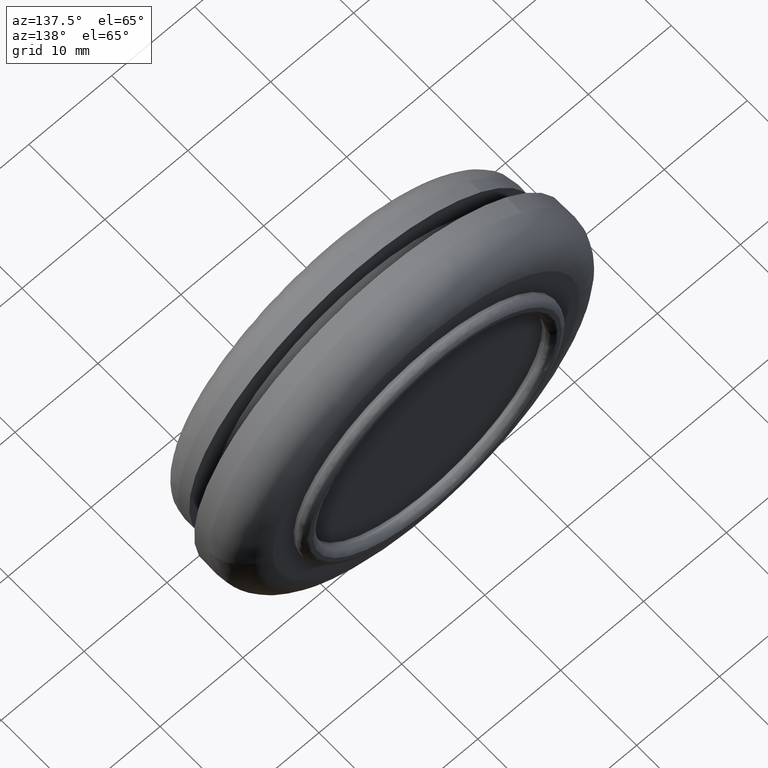
[diagram: clean part render]
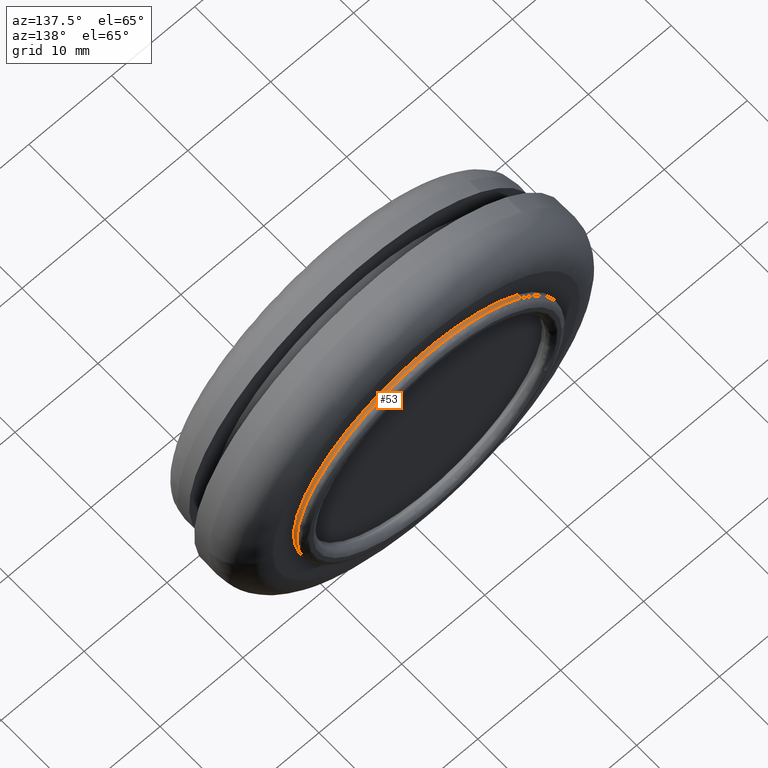
[diagram: same view with one face highlighted and labeled with its STEP entity id]
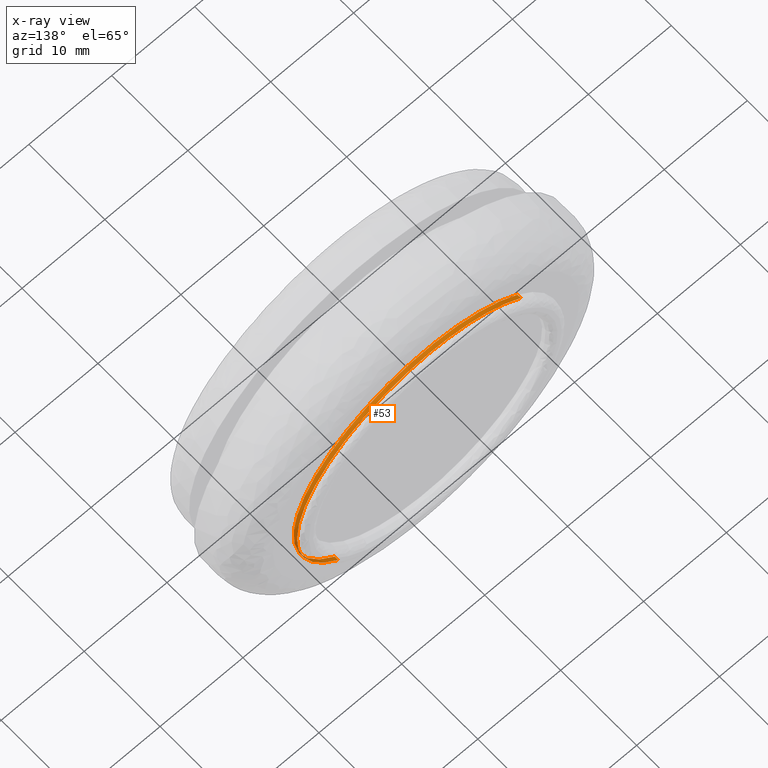
[diagram: x-ray of the same camera — body ghosted, the highlighted face saturated]
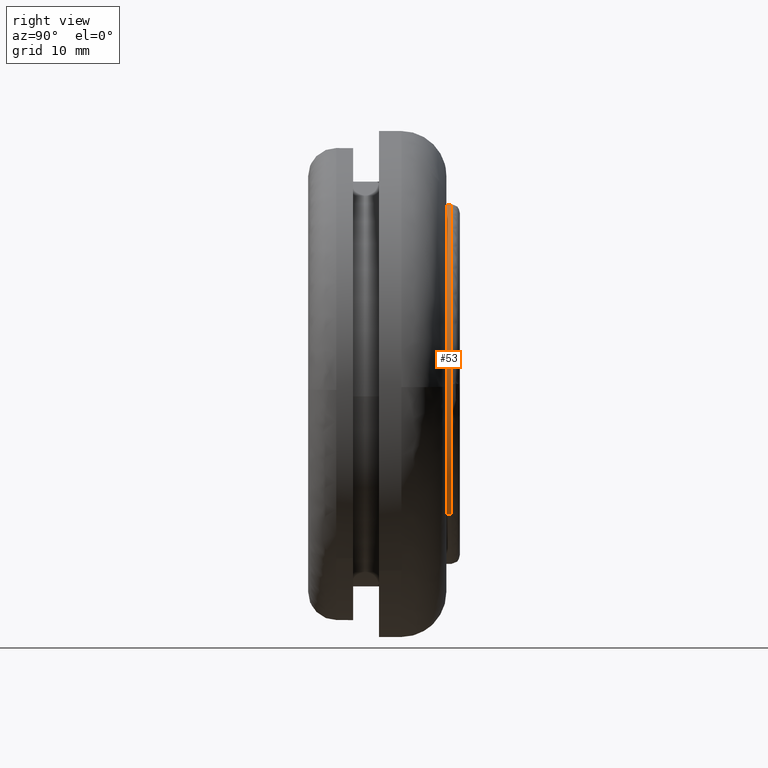
[diagram: same view with one face highlighted and labeled with its STEP entity id]
A machine part, auxiliary view. The second image highlights one B-rep face of the part: STEP entity #53.
The next image is the same camera in x-ray: the body ghosted, the highlighted face saturated — about 0% of this face is hidden behind the body in this view.
A second angle (right view) of the same face is appended — the face is thin or edge-on in the first view.
In plain terms, the highlighted cylindrical surface (partial cylindrical patch) has radius 16 mm, axis along (0, 1, 0).
Its self-contained STEP definition (entity closure, byte-faithful):
#53=ADVANCED_FACE('',(#203),#202,.T.);
#202=CYLINDRICAL_SURFACE('',#499,1.60000000000E+001);
#203=FACE_OUTER_BOUND('',#500,.T.);
#496=CARTESIAN_POINT('',(2.61050262109E-015,1.27612500004E+001,2.47727448873E-015));
#497=DIRECTION('',(1.41524948008E-016,1.00000000000E+000,1.34302160966E-016));
#498=DIRECTION('',(-6.88354575694E-001,1.23259516441E-032,7.25374371012E-001));
#499=AXIS2_PLACEMENT_3D('',#496,#497,#498);
#500=EDGE_LOOP('',(#728,#729,#730,#731,#732,#733));
#728=ORIENTED_EDGE('',*,*,#852,.T.);
#729=ORIENTED_EDGE('',*,*,#859,.T.);
#730=ORIENTED_EDGE('',*,*,#858,.T.);
#731=ORIENTED_EDGE('',*,*,#860,.F.);
#732=ORIENTED_EDGE('',*,*,#819,.F.);
#733=ORIENTED_EDGE('',*,*,#861,.T.);
#819=EDGE_CURVE('',#969,#976,#977,.T.);
#852=EDGE_CURVE('',#1202,#1203,#1204,.T.);
#858=EDGE_CURVE('',#1243,#1236,#1244,.T.);
#859=EDGE_CURVE('',#1203,#1243,#1250,.T.);
#860=EDGE_CURVE('',#976,#1236,#1256,.T.);
#861=EDGE_CURVE('',#969,#1202,#1262,.T.);
#969=VERTEX_POINT('',#1510);
#976=VERTEX_POINT('',#1515);
#977=CIRCLE('',#1519,1.60000000000E+001);
#1202=VERTEX_POINT('',#1669);
#1203=VERTEX_POINT('',#1670);
#1204=CIRCLE('',#1674,1.60000000000E+001);
#1236=VERTEX_POINT('',#1692);
#1243=VERTEX_POINT('',#1697);
#1244=CIRCLE('',#1701,1.60000000000E+001);
#1250=CIRCLE('',#1705,1.60000000000E+001);
#1256=(BOUNDED_CURVE() B_SPLINE_CURVE(1,(#1706,#1707),.UNSPECIFIED.,.F.,.F.) B_SPLINE_CURVE_WITH_KNOTS((2,2),(8.33332538610E-002,9.16666666064E-001),.UNSPECIFIED.) CURVE() GEOMETRIC_REPRESENTATION_ITEM() RATIONAL_B_SPLINE_CURVE((1.00000000000E+000,1.00000000000E+000)) REPRESENTATION_ITEM('') );
#1262=(BOUNDED_CURVE() B_SPLINE_CURVE(1,(#1708,#1709),.UNSPECIFIED.,.F.,.F.) B_SPLINE_CURVE_WITH_KNOTS((2,2),(8.33333333334E-002,9.16666666317E-001),.UNSPECIFIED.) CURVE() GEOMETRIC_REPRESENTATION_ITEM() RATIONAL_B_SPLINE_CURVE((7.50000000000E-001,7.50000000000E-001)) REPRESENTATION_ITEM('') );
#1510=CARTESIAN_POINT('',(1.10151809836E+001,1.23000000000E+001,-1.16045589274E+001));
#1515=CARTESIAN_POINT('',(-1.10136732103E+001,1.23000000000E+001,1.16059899369E+001));
#1516=CARTESIAN_POINT('',(-3.28626015289E-014,1.23000000000E+001,9.05941988094E-014));
#1517=DIRECTION('',(-9.42055475210E-016,-1.00000000000E+000,2.10942374679E-015));
#1518=DIRECTION('',(1.49880108324E-015,-2.10942374679E-015,-1.00000000000E+000));
#1519=AXIS2_PLACEMENT_3D('',#1516,#1517,#1518);
#1669=CARTESIAN_POINT('',(1.10136747398E+001,1.27500000002E+001,-1.16059884855E+001));
#1670=CARTESIAN_POINT('',(1.60000000000E+001,1.27500000004E+001,-3.54657300000E-015));
#1671=CARTESIAN_POINT('',(1.22568621919E-013,1.27500000002E+001,-1.95399252334E-014));
#1672=DIRECTION('',(1.19770644762E-011,-1.00000000000E+000,1.19483366065E-011));
#1673=DIRECTION('',(-6.88354538461E-001,4.22550883172E-013,7.25374406345E-001));
#1674=AXIS2_PLACEMENT_3D('',#1671,#1672,#1673);
#1692=CARTESIAN_POINT('',(-1.10136735103E+001,1.27500000002E+001,1.16059896522E+001));
#1697=CARTESIAN_POINT('',(0.00000000000E+000,1.27500000000E+001,1.60000000000E+001));
#1698=CARTESIAN_POINT('',(-1.13686837722E-013,1.27500000002E+001,1.59872115546E-014));
#1699=DIRECTION('',(-1.19770635864E-011,-1.00000000000E+000,-1.19483357622E-011));
#1700=DIRECTION('',(6.88354538461E-001,4.22550883172E-013,-7.25374406345E-001));
#1701=AXIS2_PLACEMENT_3D('',#1698,#1699,#1700);
#1702=CARTESIAN_POINT('',(-8.88178419700E-015,1.27500000002E+001,-8.88178419700E-015));
#1703=DIRECTION('',(1.19501075702E-011,-1.00000000000E+000,-1.19504447308E-011));
#1704=DIRECTION('',(-1.00000000000E+000,-1.19501075702E-011,-3.33450699813E-016));
#1705=AXIS2_PLACEMENT_3D('',#1702,#1703,#1704);
#1706=CARTESIAN_POINT('',(-1.10136732111E+001,1.22999999571E+001,1.16059899362E+001));
#1707=CARTESIAN_POINT('',(-1.10136732111E+001,1.27500000001E+001,1.16059899362E+001));
#1708=CARTESIAN_POINT('',(1.10136732111E+001,1.23000000000E+001,-1.16059899362E+001));
#1709=CARTESIAN_POINT('',(1.10136732111E+001,1.27500000002E+001,-1.16059899362E+001));